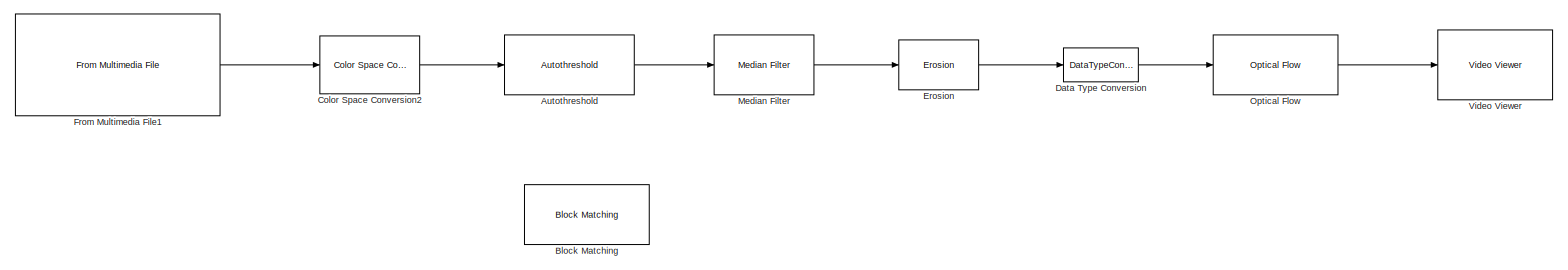
[diagram: root canvas - part 1/1, most of the canvas]
MODEL slx_3dccbea53bc6
KIND model
CONFIG AbsTol = auto
CONFIG FixedStep = auto
CONFIG MaxStep = auto
CONFIG MinStep = auto
CONFIG RelTol = 1e-3
CONFIG SampleTimeConstraint = Unconstrained
CONFIG Solver = ode45
CONFIG SolverMode = Auto
CONFIG SolverName = ode45
CONFIG StartTime = 0.0
CONFIG StopTime = 10.0
BLOCK [Reference] Autothreshold  REF=visionconversions/Autothreshold
  A1FracLength = 30
  A1Mode = Same as Product 1
  A1WordLength = 32
  A2FracLength = 22
  A2Mode = Same as Product 2
  A2WordLength = 32
  A3FracLength = 14
  A3Mode = Same as Product 3
  A3WordLength = 32
  A4FracLength = 4
  A4Mode = Same as Product 4
  A4WordLength = 16
  EMFracLength = 14
  EMMode = Specify word length
  EMWordLength = 16
  LockScale = off
  P1FracLength = 30
  P1Mode = Specify word length
  P1WordLength = 32
  P2FracLength = 22
  P2Mode = Specify word length
  P2WordLength = 32
  P3FracLength = 14
  P3Mode = Specify word length
  P3WordLength = 32
  P4FracLength = 15
  P4Mode = Binary point scaling
  P4WordLength = 32
  Ports = [1, 1]
  Q1FracLength = 16
  Q1Mode = Specify word length
  Q1WordLength = 32
  SourceBlock = visionconversions/Autothreshold
  SourceType = Autothreshold
  effMetricOut = off
  operator = >
  outOfRngOpt = Warn and saturate
  overflowMode = off
  roundingMode = Floor
  scaleFactor = 1
  scaleThreshold = off
  threshOut = off
  umax = 255
  umin = 0
  userDefinedRange = off
BLOCK [Reference] Block Matching  REF=visionanalysis/Block Matching
  Commented = on
  LockScale = off
  N = 2
  Ports = [1, 1]
  SourceBlock = visionanalysis/Block Matching
  SourceType = Block Matching
  accumFracLength = 0
  accumMode = Binary point scaling
  accumWordLength = 32
  blockSize = [17 17]
  matchCriteria = Mean square error (MSE)
  maxDisplacement = [7 7]
  outVelForm = Magnitude-squared
  outputFracLength = 0
  outputMode = Binary point scaling
  outputWordLength = 8
  overflowMode = on
  overlapping = [0 0]
  prodOutputFracLength = 0
  prodOutputMode = Binary point scaling
  prodOutputWordLength = 32
  roundingMode = Floor
  searchMethod = Exhaustive
  which2img = Current frame and N-th frame back
BLOCK [Reference] Color Space Conversion2  REF=visionconversions/Color Space
 Conversion
  Ports = [1, 1]
  SourceBlock = visionconversions/Color Space\n Conversion
  SourceType = Color Space Conversion
  conversion = Obsolete
  conversionActive = R'G'B' to intensity
  imagePorts = One multidimensional signal
  rec = Rec. 601 (SDTV)
  sys = 1125/60/2:1
  wp_str = D65
BLOCK [DataTypeConversion] Data Type Conversion
  OutDataTypeStr = double
  RndMeth = Floor
  SaturateOnIntegerOverflow = off
BLOCK [Reference] Erosion  REF=visionmorphops/Erosion
  Ports = [1, 1]
  SourceBlock = visionmorphops/Erosion
  SourceType = Erosion
  nhoodsrc = Specify via dialog
  strel = strel('square',4)
BLOCK [Reference] From Multimedia File1  REF=dspvision/From Multimedia File
  Ports = [0, 1]
  SourceBlock = dspvision/From Multimedia File
  SourceType = From Multimedia File
  audioDataType = int16
  audioFrameSize = 1024
  colorVideoFormat = One multidimensional signal
  computeAudioFrameSize = off
  dataOrg = Column-major
  fourcc = RGB
  inheritSampleTime = on
  inputFilename = <path>
  isIntensityVideo = off
  loop = on
  noAudioOutput = off
  numPlays = inf
  outSamplingMode = Sample based
  outputEOF = off
  outputStreams = Video only
  userDefinedSampleTime = 1/30
  videoDataType = double
BLOCK [Reference] Median Filter  REF=visionanalysis/Median Filter
  LockScale = off
  Ports = [1, 1]
  SourceBlock = visionanalysis/Median Filter
  SourceType = Median Filter
  accumFracLength = 30
  accumMode = Same as input
  accumWordLength = 32
  nghbood = [3 3]
  outSize = Same as input port I
  outputFracLength = 15
  outputMode = Same as input
  outputWordLength = 16
  overflowMode = off
  padSrc = Specify via dialog
  padType = Symmetric
  padVal = 0
  prodOutputFracLength = 30
  prodOutputMode = Same as input
  prodOutputWordLength = 32
  roundingMode = Floor
BLOCK [Reference] Optical Flow  REF=visionanalysis/Optical Flow
  LockScale = off
  N = 1
  Ports = [1, 1]
  SourceBlock = visionanalysis/Optical Flow
  SourceType = Optical Flow
  accumFracLength = 20
  accumMode = Same as product output
  accumWordLength = 32
  discardNormalFlow = off
  eigTh = 0.0039
  firstCoeffFracLength = 12
  firstCoeffMode = Same word length as first input
  firstCoeffWordLength = 16
  gradMethod = Difference filter [-1 1]
  lambda = 1
  maxAllowAbsDiff = eps
  maxIter = 10
  memoryFracLength = 20
  memoryMode = Same as accumulator
  memoryWordLength = 32
  method = Horn-Schunck
  numInports = 3
  outVelForm = Magnitude-squared
  outputCurrentImage = off
  outputFracLength = 20
  outputMode = Binary point scaling
  outputWordLength = 32
  overflowMode = on
  prodOutputFracLength = 20
  prodOutputMode = Binary point scaling
  prodOutputWordLength = 32
  roundingMode = Nearest
  sigmaS = 1.5
  sigmaW = 1
  stop_criteria = When maximum number of iterations is reached
  which2img = Current frame and N-th frame back
BLOCK [Reference] Video Viewer  REF=visionsinks/Video Viewer
  AxisZoom = on
  DefaultConfigurationName = vipscopes.VideoViewerScopeCfg
  FigPos = [1 1038 1920 939]
  OpenAtMdlStart = on
  Ports = [1]
  SourceBlock = visionsinks/Video Viewer
  SourceType = Video Viewer
  UserDataPersistent = on
  colormapValue = gray(256)
  imagePorts = One multidimensional signal
  inputType = Obsolete7b
  maxInputVal = 255
  minInputVal = 0
  specRange = off
  trueSizedOnce = off
  useColorMap = off
LINE Autothreshold:1 -> Median Filter:1
LINE Color Space Conversion2:1 -> Autothreshold:1
LINE Data Type Conversion:1 -> Optical Flow:1
LINE Erosion:1 -> Data Type Conversion:1
LINE From Multimedia File1:1 -> Color Space Conversion2:1
LINE Median Filter:1 -> Erosion:1
LINE Optical Flow:1 -> Video Viewer:1
note: 1 file-system path scrubbed to <path> (not preserved elsewhere — flat text is the only slx artifact)
